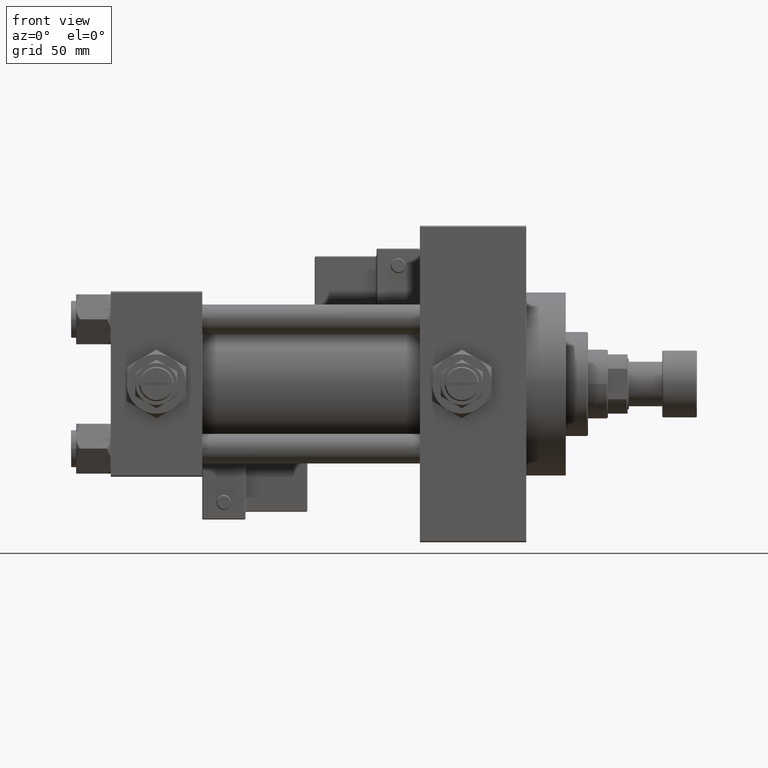
[diagram: clean part render]
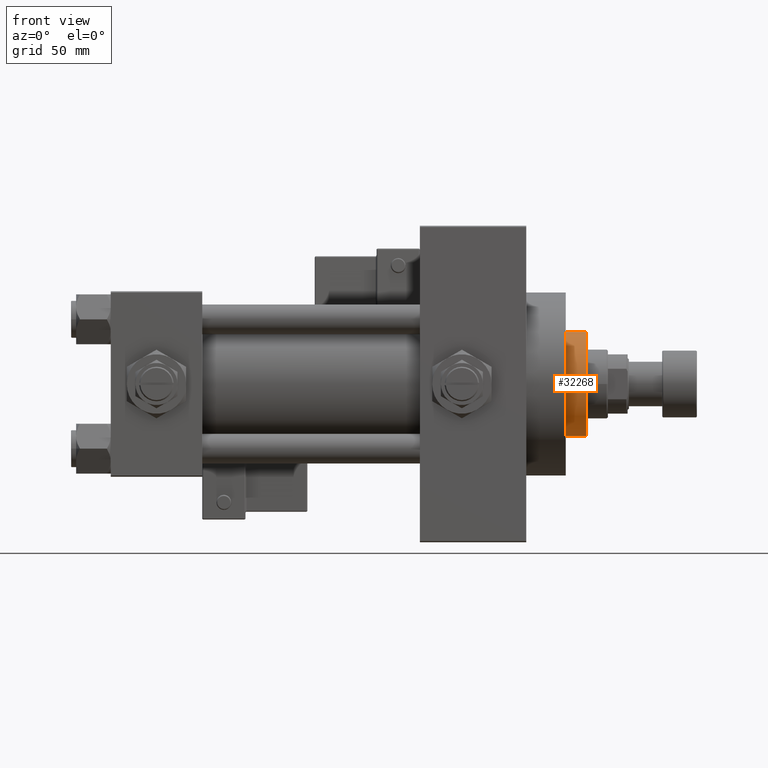
[diagram: same view with one face highlighted and labeled with its STEP entity id]
A machine part, front view. The second image highlights one B-rep face of the part: STEP entity #32268.
In plain terms, the highlighted cylindrical surface (partial cylindrical patch) has radius 21 mm, axis along (-1, 0, 0).
Its self-contained STEP definition (entity closure, byte-faithful):
#18 = VERTEX_POINT ( 'NONE', #49320 ) ;
#1116 = EDGE_CURVE ( 'NONE', #46696, #18365, #21427, .T. ) ;
#2224 = ORIENTED_EDGE ( 'NONE', *, *, #1116, .F. ) ;
#5706 = EDGE_LOOP ( 'NONE', ( #47725, #48888, #13973, #2224 ) ) ;
#7081 = DIRECTION ( 'NONE',  ( 0.000000000000000000, 0.000000000000000000, -1.000000000000000000 ) ) ;
#10768 = CARTESIAN_POINT ( 'NONE',  ( 0.000000000000000000, 0.000000000000000000, 52.25999999999999801 ) ) ;
#10775 = DIRECTION ( 'NONE',  ( 1.000000000000000000, 0.000000000000000000, 0.000000000000000000 ) ) ;
#11412 = DIRECTION ( 'NONE',  ( 0.000000000000000000, 0.000000000000000000, 1.000000000000000000 ) ) ;
#11764 = CIRCLE ( 'NONE', #35223, 21.00000000000000000 ) ;
#13973 = ORIENTED_EDGE ( 'NONE', *, *, #40190, .T. ) ;
#15444 = EDGE_CURVE ( 'NONE', #46696, #48082, #28610, .T. ) ;
#18365 = VERTEX_POINT ( 'NONE', #23677 ) ;
#21427 = LINE ( 'NONE', #25121, #30693 ) ;
#22081 = CYLINDRICAL_SURFACE ( 'NONE', #43312, 21.00000000000000000 ) ;
#23151 = CARTESIAN_POINT ( 'NONE',  ( 21.00000000000000000, 2.571758278209441661E-15, 51.75999999999999801 ) ) ;
#23677 = CARTESIAN_POINT ( 'NONE',  ( -21.00000000000000000, 0.000000000000000000, 43.25999999999999801 ) ) ;
#25121 = CARTESIAN_POINT ( 'NONE',  ( -21.00000000000000000, 0.000000000000000000, 52.25999999999999801 ) ) ;
#27349 = CARTESIAN_POINT ( 'NONE',  ( 21.00000000000000000, 2.571758278209441661E-15, 52.25999999999999801 ) ) ;
#27579 = CARTESIAN_POINT ( 'NONE',  ( 0.000000000000000000, 0.000000000000000000, 51.75999999999999801 ) ) ;
#28610 = CIRCLE ( 'NONE', #33620, 21.00000000000000000 ) ;
#29875 = EDGE_CURVE ( 'NONE', #48082, #18, #31541, .T. ) ;
#30693 = VECTOR ( 'NONE', #49531, 1000.000000000000000 ) ;
#31541 = LINE ( 'NONE', #27349, #34039 ) ;
#32268 = ADVANCED_FACE ( 'NONE', ( #46999 ), #22081, .T. ) ;
#33620 = AXIS2_PLACEMENT_3D ( 'NONE', #27579, #7081, #10775 ) ;
#34039 = VECTOR ( 'NONE', #37924, 1000.000000000000000 ) ;
#35223 = AXIS2_PLACEMENT_3D ( 'NONE', #46614, #11412, #46866 ) ;
#37924 = DIRECTION ( 'NONE',  ( -0.000000000000000000, -0.000000000000000000, -1.000000000000000000 ) ) ;
#38604 = DIRECTION ( 'NONE',  ( -0.000000000000000000, -0.000000000000000000, -1.000000000000000000 ) ) ;
#40190 = EDGE_CURVE ( 'NONE', #18, #18365, #11764, .T. ) ;
#43312 = AXIS2_PLACEMENT_3D ( 'NONE', #10768, #38604, #50697 ) ;
#46614 = CARTESIAN_POINT ( 'NONE',  ( 0.000000000000000000, 0.000000000000000000, 43.25999999999999801 ) ) ;
#46696 = VERTEX_POINT ( 'NONE', #51453 ) ;
#46866 = DIRECTION ( 'NONE',  ( 1.000000000000000000, 0.000000000000000000, 0.000000000000000000 ) ) ;
#46999 = FACE_OUTER_BOUND ( 'NONE', #5706, .T. ) ;
#47725 = ORIENTED_EDGE ( 'NONE', *, *, #15444, .T. ) ;
#48082 = VERTEX_POINT ( 'NONE', #23151 ) ;
#48888 = ORIENTED_EDGE ( 'NONE', *, *, #29875, .T. ) ;
#49320 = CARTESIAN_POINT ( 'NONE',  ( 21.00000000000000000, 2.571758278209441661E-15, 43.25999999999999801 ) ) ;
#49531 = DIRECTION ( 'NONE',  ( -0.000000000000000000, -0.000000000000000000, -1.000000000000000000 ) ) ;
#50697 = DIRECTION ( 'NONE',  ( -1.000000000000000000, 0.000000000000000000, 0.000000000000000000 ) ) ;
#51453 = CARTESIAN_POINT ( 'NONE',  ( -21.00000000000000000, 0.000000000000000000, 51.75999999999999801 ) ) ;